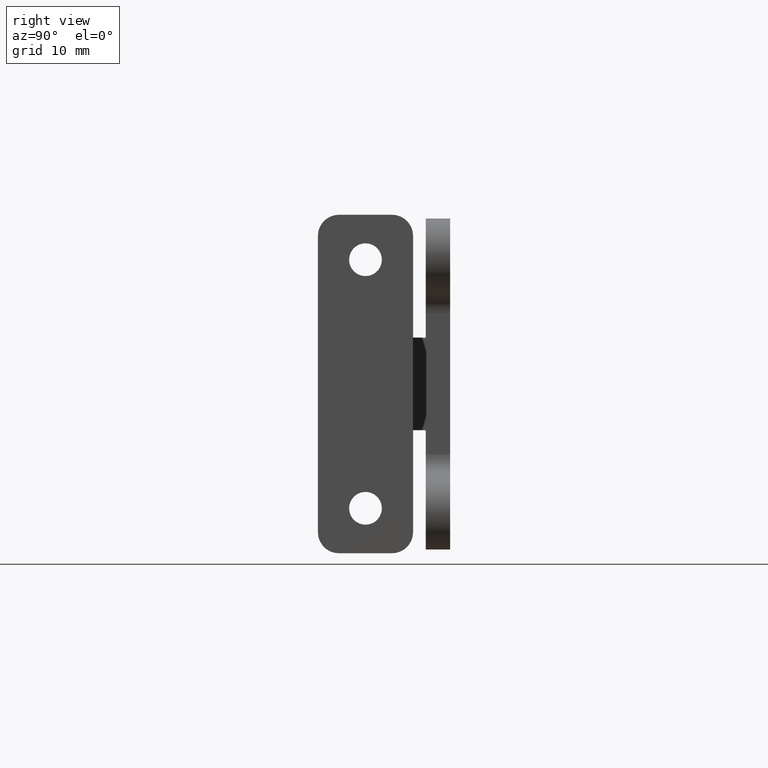
[diagram: clean part render]
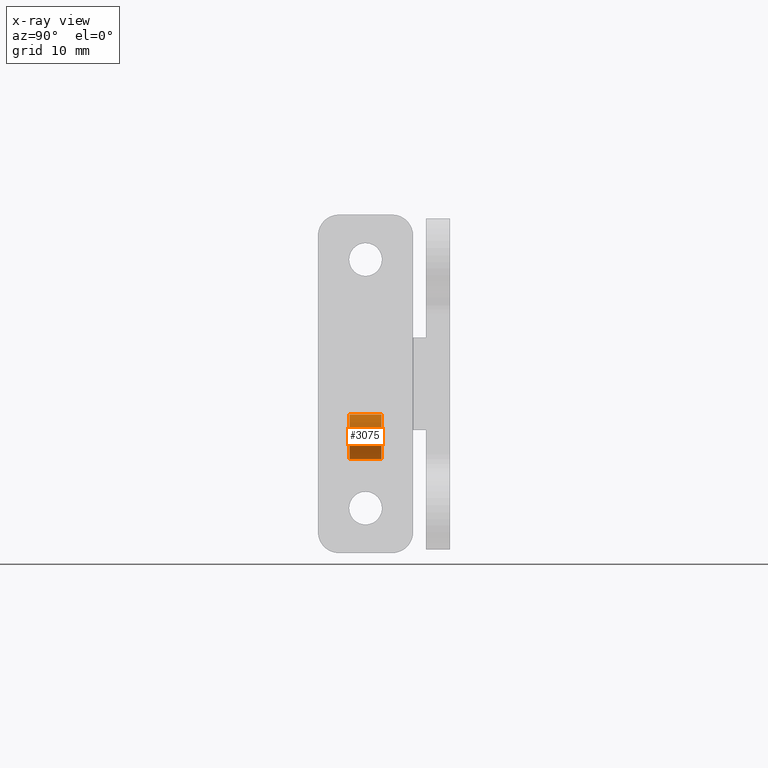
[diagram: x-ray — body ghosted, one internal face saturated and labeled with its STEP entity id]
A machine part, right view, then the same camera in x-ray: the body is ghosted and one INTERNAL B-rep face — a face not visible from any outside direction — is saturated and labeled: STEP entity #3075.
In plain terms, the highlighted face is a freeform B-spline surface patch.
Its self-contained STEP definition (entity closure, byte-faithful):
#2927=CARTESIAN_POINT('',(18.245032958328427,-9.574999999999996,-3.535392815980238));
#2928=CARTESIAN_POINT('',(18.286949386697266,-9.574999999999996,-3.492321305825170));
#2929=CARTESIAN_POINT('',(18.331260564007110,-9.574999999999996,-3.451717592698740));
#2930=CARTESIAN_POINT('',(19.879542971308371,-9.574999999999996,-2.032978156705855));
#2931=CARTESIAN_POINT('',(21.298282407301262,-9.574999999999996,-3.581260564007114));
#2932=CARTESIAN_POINT('',(22.717021843294155,-9.574999999999996,-5.129542971308375));
#2933=CARTESIAN_POINT('',(21.168739435992890,-9.574999999999996,-6.548282407301260));
#2934=CARTESIAN_POINT('',(19.620457028691625,-9.574999999999996,-7.967021843294146));
#2935=CARTESIAN_POINT('',(18.201717592698738,-9.574999999999996,-6.418739435992886));
#2936=CARTESIAN_POINT('',(18.245032958328427,-6.423125000000175,-3.535392815980238));
#2937=CARTESIAN_POINT('',(18.286949386697266,-6.423125000000175,-3.492321305825170));
#2938=CARTESIAN_POINT('',(18.331260564007110,-6.423125000000174,-3.451717592698740));
#2939=CARTESIAN_POINT('',(19.879542971308371,-6.423125000000175,-2.032978156705855));
#2940=CARTESIAN_POINT('',(21.298282407301262,-6.423125000000174,-3.581260564007114));
#2941=CARTESIAN_POINT('',(22.717021843294155,-6.423125000000175,-5.129542971308375));
#2942=CARTESIAN_POINT('',(21.168739435992890,-6.423125000000174,-6.548282407301260));
#2943=CARTESIAN_POINT('',(19.620457028691625,-6.423125000000175,-7.967021843294146));
#2944=CARTESIAN_POINT('',(18.201717592698738,-6.423125000000174,-6.418739435992886));
#2952=(BOUNDED_SURFACE()B_SPLINE_SURFACE(2,1,((#2927,#2936),(#2928,#2937),(#2929,#2938),(#2930,#2939),(#2931,#2940),(#2932,#2941),(#2933,#2942),(#2934,#2943),(#2935,#2944)),.UNSPECIFIED.,.F.,.F.,.U.)B_SPLINE_SURFACE_WITH_KNOTS((3,2,2,2,3),(2,2),(0.0,0.139175756957360,3.618569680891360,7.097963604825360,10.577357528759361),(0.0,3.151874999999822),.UNSPECIFIED.)GEOMETRIC_REPRESENTATION_ITEM()RATIONAL_B_SPLINE_SURFACE(((0.977505800795127,0.977505800795127),(0.988284271247462,0.988284271247462),(1.0,1.0),(0.707106781186548,0.707106781186548),(1.0,1.0),(0.707106781186548,0.707106781186548),(1.0,1.0),(0.707106781186548,0.707106781186548),(1.0,1.0)))REPRESENTATION_ITEM('')SURFACE());
#2953=CARTESIAN_POINT('',(19.750000000000000,-6.500000000000170,-2.900000000000000));
#2954=VERTEX_POINT('',#2953);
#2955=CARTESIAN_POINT('',(18.245033076820231,-6.500000000003267,-3.535393009074110));
#2956=VERTEX_POINT('',#2955);
#2957=CARTESIAN_POINT('',(19.750000000000000,-6.500000000000170,-2.900000000000000));
#2958=CARTESIAN_POINT('',(19.610177241447641,-6.500000000000467,-2.899985795022464));
#2959=CARTESIAN_POINT('',(19.295578097556401,-6.500000000001089,-2.931516229082207));
#2960=CARTESIAN_POINT('',(18.761328975681359,-6.500000000002235,-3.111218470591459));
#2961=CARTESIAN_POINT('',(18.415573946186139,-6.500000000002899,-3.359891678604912));
#2962=CARTESIAN_POINT('',(18.245033076820231,-6.500000000003267,-3.535393009074110));
#2963=B_SPLINE_CURVE_WITH_KNOTS('',3,(#2957,#2958,#2959,#2960,#2961,#2962),.UNSPECIFIED.,.F.,.U.,(4,1,1,4),(0.000000020547976,0.419471668941327,0.943803955746893,1.677886614124657),.UNSPECIFIED.);
#2964=EDGE_CURVE('',#2954,#2956,#2963,.T.);
#2965=ORIENTED_EDGE('',*,*,#2964,.F.);
#2966=CARTESIAN_POINT('',(21.849999999999820,-6.500000000000170,-4.999999121327108));
#2967=VERTEX_POINT('',#2966);
#2968=CARTESIAN_POINT('',(21.849999999999820,-6.500000000000170,-4.999999121327108));
#2969=CARTESIAN_POINT('',(21.850005213648451,-6.500000000000162,-4.871149588085745));
#2970=CARTESIAN_POINT('',(21.823062652507250,-6.500000000000179,-4.579074733591533));
#2971=CARTESIAN_POINT('',(21.700118369063400,-6.500000000000171,-4.182558755468024));
#2972=CARTESIAN_POINT('',(21.479771144425680,-6.500000000000165,-3.782213318288164));
#2973=CARTESIAN_POINT('',(21.197125740739391,-6.500000000000186,-3.454522333727796));
#2974=CARTESIAN_POINT('',(20.878176224631559,-6.500000000000155,-3.218024337209635));
#2975=CARTESIAN_POINT('',(20.542037468031300,-6.500000000000197,-3.043604853771290));
#2976=CARTESIAN_POINT('',(20.179513947911499,-6.500000000000137,-2.928759029400558));
#2977=CARTESIAN_POINT('',(19.887442999358100,-6.500000000000226,-2.899988834226380));
#2978=CARTESIAN_POINT('',(19.750000000000000,-6.500000000000170,-2.900000000000000));
#2979=B_SPLINE_CURVE_WITH_KNOTS('',3,(#2968,#2969,#2970,#2971,#2972,#2973,#2974,#2975,#2976,#2977,#2978),.UNSPECIFIED.,.F.,.U.,(4,1,1,1,1,1,1,1,4),(0.000000073960308,0.386554359074870,0.876215514241926,1.237016082435282,1.752412932039055,2.164758770123615,2.422476526930133,2.886359921972095,3.298692488806632),.UNSPECIFIED.);
#2980=EDGE_CURVE('',#2967,#2954,#2979,.T.);
#2981=ORIENTED_EDGE('',*,*,#2980,.F.);
#2982=CARTESIAN_POINT('',(19.750000000000000,-6.500000000000170,-7.100000000000001));
#2983=VERTEX_POINT('',#2982);
#2984=CARTESIAN_POINT('',(19.750000000000000,-6.500000000000170,-7.100000000000001));
#2985=CARTESIAN_POINT('',(19.964773171654560,-6.500000000000175,-7.100105146326746));
#2986=CARTESIAN_POINT('',(20.282542526595218,-6.500000000000164,-7.050804072328146));
#2987=CARTESIAN_POINT('',(20.706429863732460,-6.500000000000176,-6.881256506998583));
#2988=CARTESIAN_POINT('',(21.022421513729590,-6.500000000000164,-6.686559102730724));
#2989=CARTESIAN_POINT('',(21.321166947772738,-6.500000000000183,-6.412435106801118));
#2990=CARTESIAN_POINT('',(21.557692368329231,-6.500000000000140,-6.093513809461125));
#2991=CARTESIAN_POINT('',(21.781903206816018,-6.500000000000170,-5.626971788531717));
#2992=CARTESIAN_POINT('',(21.850218717762829,-6.500000000000168,-5.249153140935311));
#2993=CARTESIAN_POINT('',(21.849999999999820,-6.500000000000170,-4.999999121327108));
#2994=B_SPLINE_CURVE_WITH_KNOTS('',3,(#2984,#2985,#2986,#2987,#2988,#2989,#2990,#2991,#2992,#2993),.UNSPECIFIED.,.F.,.U.,(4,1,1,1,1,1,1,4),(0.000000073650623,0.644275396805546,0.953532169598996,1.365879161600307,1.752413459157297,2.164759420722304,2.551335254209168,3.298693479282025),.UNSPECIFIED.);
#2995=EDGE_CURVE('',#2983,#2967,#2994,.T.);
#2996=ORIENTED_EDGE('',*,*,#2995,.F.);
#2997=CARTESIAN_POINT('',(18.201717474059048,-6.499999999997701,-6.418739630433144));
#2998=VERTEX_POINT('',#2997);
#2999=CARTESIAN_POINT('',(18.201717474059048,-6.499999999997701,-6.418739630433144));
#3000=CARTESIAN_POINT('',(18.336440185836690,-6.499999999997907,-6.565869772782421));
#3001=CARTESIAN_POINT('',(18.598642322309590,-6.499999999998352,-6.780589290843167));
#3002=CARTESIAN_POINT('',(19.124453706782688,-6.499999999999162,-7.032618676825905));
#3003=CARTESIAN_POINT('',(19.505147874085040,-6.499999999999783,-7.100168795737931));
#3004=CARTESIAN_POINT('',(19.750000000000000,-6.500000000000170,-7.100000000000001));
#3005=B_SPLINE_CURVE_WITH_KNOTS('',3,(#2999,#3000,#3001,#3002,#3003,#3004),.UNSPECIFIED.,.F.,.U.,(4,1,1,4),(0.000000021861257,0.598462299284967,1.006502275679055,1.740978127571912),.UNSPECIFIED.);
#3006=EDGE_CURVE('',#2998,#2983,#3005,.T.);
#3007=ORIENTED_EDGE('',*,*,#3006,.F.);
#3008=CARTESIAN_POINT('',(18.201717473522251,-9.500000000000000,-6.418739629847332));
#3009=VERTEX_POINT('',#3008);
#3010=CARTESIAN_POINT('',(18.201717473522251,-9.500000000000000,-6.418739629847332));
#3011=CARTESIAN_POINT('',(18.201717474059048,-6.499999999997701,-6.418739630433144));
#3012=QUASI_UNIFORM_CURVE('',1,(#3010,#3011),.UNSPECIFIED.,.F.,.U.);
#3013=EDGE_CURVE('',#3009,#2998,#3012,.T.);
#3014=ORIENTED_EDGE('',*,*,#3013,.F.);
#3015=CARTESIAN_POINT('',(19.750000000000000,-9.500000000000000,-7.100000000000001));
#3016=VERTEX_POINT('',#3015);
#3017=CARTESIAN_POINT('',(18.201717473522251,-9.500000000000000,-6.418739629847332));
#3018=CARTESIAN_POINT('',(18.336437184716999,-9.499999999999998,-6.565873971316409));
#3019=CARTESIAN_POINT('',(18.634060052704960,-9.500000000000032,-6.809644414949231));
#3020=CARTESIAN_POINT('',(19.169712961490369,-9.499999999999906,-7.045319888184722));
#3021=CARTESIAN_POINT('',(19.550505351136490,-9.500000000000057,-7.100081939986154));
#3022=CARTESIAN_POINT('',(19.750000000000000,-9.500000000000000,-7.100000000000001));
#3023=B_SPLINE_CURVE_WITH_KNOTS('',3,(#3017,#3018,#3019,#3020,#3021,#3022),.UNSPECIFIED.,.F.,.U.,(4,1,1,4),(0.000000021863011,0.598462299559245,1.142515850662909,1.740978128366493),.UNSPECIFIED.);
#3024=EDGE_CURVE('',#3009,#3016,#3023,.T.);
#3025=ORIENTED_EDGE('',*,*,#3024,.T.);
#3026=CARTESIAN_POINT('',(21.849999999999820,-9.499999999999998,-4.999999121327108));
#3027=VERTEX_POINT('',#3026);
#3028=CARTESIAN_POINT('',(19.750000000000000,-9.500000000000000,-7.100000000000001));
#3029=CARTESIAN_POINT('',(19.964773192186790,-9.500000000000000,-7.100105149337471));
#3030=CARTESIAN_POINT('',(20.282542465662800,-9.499999999999993,-7.050804063493349));
#3031=CARTESIAN_POINT('',(20.706429981620879,-9.500000000000005,-6.881256524024915));
#3032=CARTESIAN_POINT('',(21.022421078545118,-9.500000000000005,-6.686559042977983));
#3033=CARTESIAN_POINT('',(21.321165044741431,-9.500000000000002,-6.412433970735337));
#3034=CARTESIAN_POINT('',(21.578275851131099,-9.499999999999982,-6.065788907377923));
#3035=CARTESIAN_POINT('',(21.791510347410430,-9.499999999999959,-5.592683832018403));
#3036=CARTESIAN_POINT('',(21.850093615358801,-9.500000000000025,-5.214764343357214));
#3037=CARTESIAN_POINT('',(21.849999999999820,-9.499999999999998,-4.999999121327108));
#3038=B_SPLINE_CURVE_WITH_KNOTS('',3,(#3028,#3029,#3030,#3031,#3032,#3033,#3034,#3035,#3036,#3037),.UNSPECIFIED.,.F.,.U.,(4,1,1,1,1,1,1,4),(0.000000073650623,0.644275396805546,0.953532169598996,1.365879161600307,1.752413459157297,2.164759420722304,2.654419532302613,3.298693479282025),.UNSPECIFIED.);
#3039=EDGE_CURVE('',#3016,#3027,#3038,.T.);
#3040=ORIENTED_EDGE('',*,*,#3039,.T.);
#3041=CARTESIAN_POINT('',(19.750000000000000,-9.500000000000000,-2.900000000000000));
#3042=VERTEX_POINT('',#3041);
#3043=CARTESIAN_POINT('',(21.849999999999820,-9.499999999999998,-4.999999121327108));
#3044=CARTESIAN_POINT('',(21.850005231975491,-9.499999999999991,-4.871149545790069));
#3045=CARTESIAN_POINT('',(21.823062641460350,-9.500000000000000,-4.579074779342799));
#3046=CARTESIAN_POINT('',(21.700118377223131,-9.499999999999996,-4.182558740924865));
#3047=CARTESIAN_POINT('',(21.479771139290239,-9.499999999999993,-3.782213321304598));
#3048=CARTESIAN_POINT('',(21.197125742643632,-9.500000000000018,-3.454522333162207));
#3049=CARTESIAN_POINT('',(20.878176224373259,-9.499999999999979,-3.218024337335221));
#3050=CARTESIAN_POINT('',(20.542037467999499,-9.500000000000037,-3.043604853732467));
#3051=CARTESIAN_POINT('',(20.179513947922789,-9.499999999999954,-2.928759029414330));
#3052=CARTESIAN_POINT('',(19.887442999356040,-9.500000000000080,-2.899988834223874));
#3053=CARTESIAN_POINT('',(19.750000000000000,-9.500000000000000,-2.900000000000000));
#3054=B_SPLINE_CURVE_WITH_KNOTS('',3,(#3043,#3044,#3045,#3046,#3047,#3048,#3049,#3050,#3051,#3052,#3053),.UNSPECIFIED.,.F.,.U.,(4,1,1,1,1,1,1,1,4),(0.000000073960308,0.386554359074870,0.876215514241926,1.237016082435282,1.752412932039055,2.164758770123615,2.422476526930133,2.886359921972095,3.298692488806632),.UNSPECIFIED.);
#3055=EDGE_CURVE('',#3027,#3042,#3054,.T.);
#3056=ORIENTED_EDGE('',*,*,#3055,.T.);
#3057=CARTESIAN_POINT('',(18.245033077292760,-9.500000000000000,-3.535393008588556));
#3058=VERTEX_POINT('',#3057);
#3059=CARTESIAN_POINT('',(19.750000000000000,-9.500000000000000,-2.900000000000000));
#3060=CARTESIAN_POINT('',(19.566473412783939,-9.500000000000025,-2.899935487075405));
#3061=CARTESIAN_POINT('',(19.269393331269530,-9.499999999999975,-2.939224577611375));
#3062=CARTESIAN_POINT('',(18.740961787764839,-9.500000000000036,-3.128056484433989));
#3063=CARTESIAN_POINT('',(18.427725912129429,-9.500000000000007,-3.347292882785554));
#3064=CARTESIAN_POINT('',(18.245033077292760,-9.500000000000000,-3.535393008588556));
#3065=B_SPLINE_CURVE_WITH_KNOTS('',3,(#3059,#3060,#3061,#3062,#3063,#3064),.UNSPECIFIED.,.F.,.U.,(4,1,1,4),(0.000000020545725,0.550558946338969,0.891372301015826,1.677886613447106),.UNSPECIFIED.);
#3066=EDGE_CURVE('',#3042,#3058,#3065,.T.);
#3067=ORIENTED_EDGE('',*,*,#3066,.T.);
#3068=CARTESIAN_POINT('',(18.245033077292760,-9.500000000000000,-3.535393008588556));
#3069=CARTESIAN_POINT('',(18.245033076820231,-6.500000000003267,-3.535393009074110));
#3070=QUASI_UNIFORM_CURVE('',1,(#3068,#3069),.UNSPECIFIED.,.F.,.U.);
#3071=EDGE_CURVE('',#3058,#2956,#3070,.T.);
#3072=ORIENTED_EDGE('',*,*,#3071,.T.);
#3073=EDGE_LOOP('',(#2965,#2981,#2996,#3007,#3014,#3025,#3040,#3056,#3067,#3072));
#3074=FACE_OUTER_BOUND('',#3073,.T.);
#3075=ADVANCED_FACE('',(#3074),#2952,.F.);